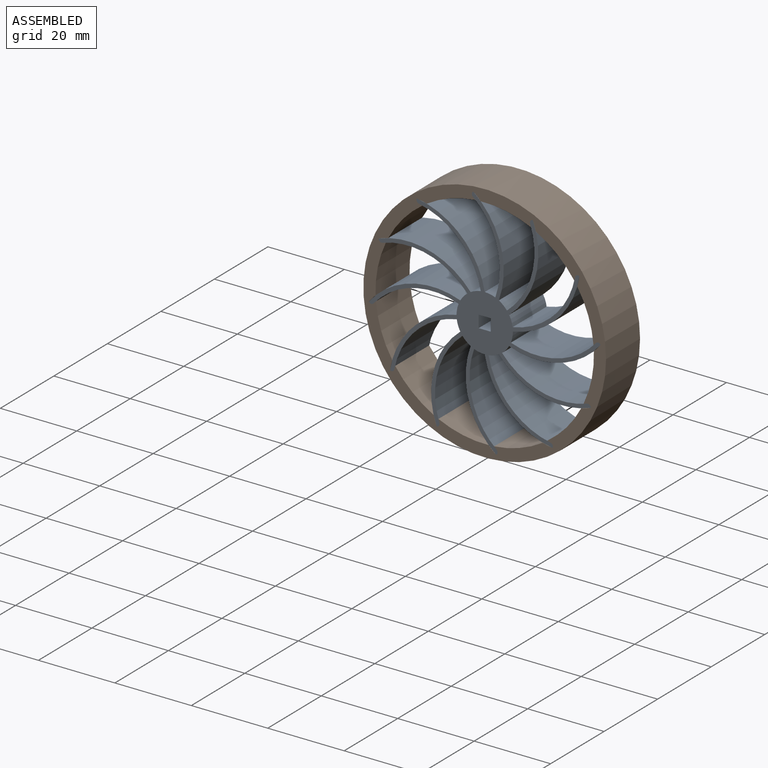
[diagram: assembled view]
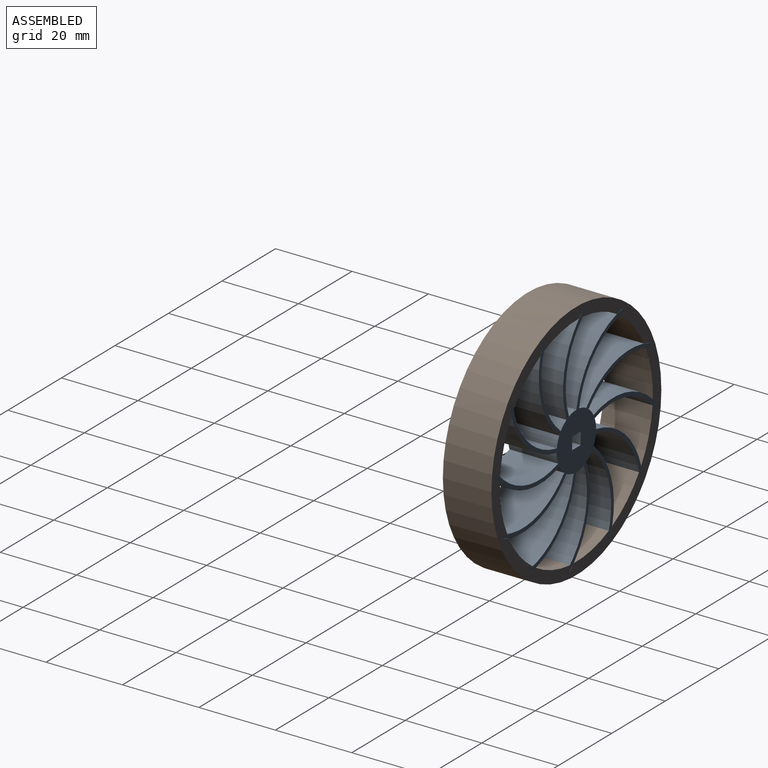
[diagram: assembled view, second angle]
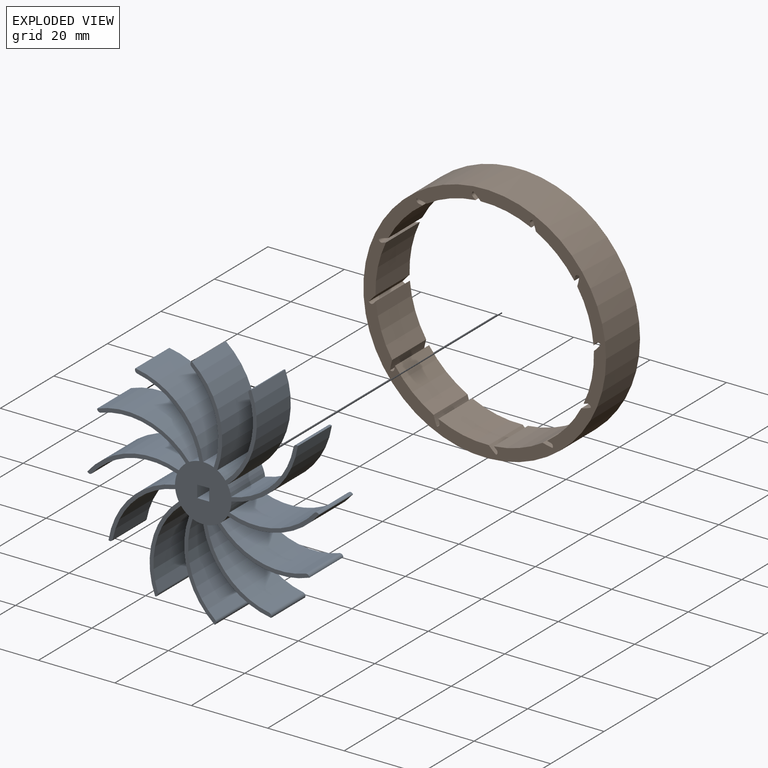
[diagram: exploded view]
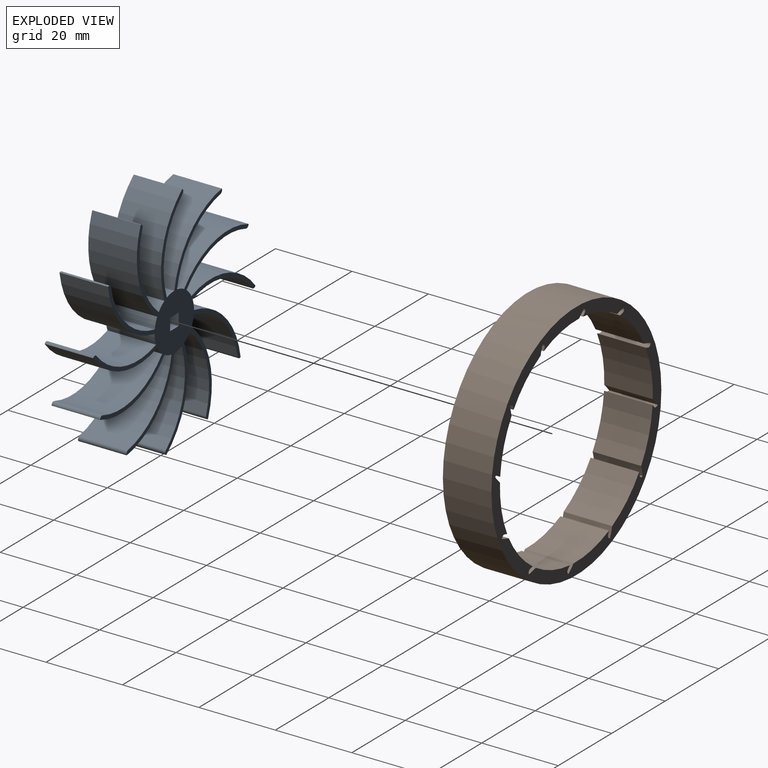
[diagram: exploded view, second angle]
ASSEMBLY  parts=2 mates=2
PART A: 54 faces, bbox 60.7x12.7x60.7 mm
  f0: plane 60.67x60.67mm, normal (0,-1,0), area 475.1mm2, adj f1,f2,f3,f4,f6,f7,f8,f9
  f1: plane 12.7x3.18mm, normal (0,0,1), area 40.3mm2, adj f0,f2,f4,f5
  f2: plane 12.7x3.18mm, normal (1,0,0), area 40.3mm2, adj f0,f1,f3,f5
  f3: plane 12.7x3.18mm, normal (0,0,-1), area 40.3mm2, adj f0,f2,f4,f5
  f4: plane 12.7x3.18mm, normal (-1,0,0), area 40.3mm2, adj f0,f1,f3,f5
  f5: plane 60.67x60.67mm, normal (0,1,0), area 475.1mm2, adj f1,f2,f3,f4,f6,f7,f8,f9
  f6: cylinder r=0.76mm len=12.7mm, axis (0,-1,0), area 18.3mm2, adj f0,f5,f7,f53
  f7: cylinder r=20.32mm len=22.21mm, axis (0,1,0), area 310.8mm2, adj f0,f5,f6,f19
  f8: cylinder r=7.38mm len=12.7mm, axis (0,1,0), area 36.1mm2, adj f0,f5,f20,f23
  f9: cylinder r=7.38mm len=12.7mm, axis (0,1,0), area 36.1mm2, adj f0,f5,f22,f26
  f10: cylinder r=7.38mm len=12.7mm, axis (0,1,0), area 36.1mm2, adj f0,f5,f28,f29
  f11: cylinder r=7.38mm len=12.7mm, axis (0,1,0), area 36.1mm2, adj f0,f5,f31,f32
  f12: cylinder r=7.38mm len=12.7mm, axis (0,1,0), area 36.1mm2, adj f0,f5,f34,f35
  f13: cylinder r=7.38mm len=12.7mm, axis (0,1,0), area 36.1mm2, adj f0,f5,f37,f38
  f14: cylinder r=7.38mm len=12.7mm, axis (0,1,0), area 36.1mm2, adj f0,f5,f40,f41
  f15: cylinder r=7.38mm len=12.7mm, axis (0,1,0), area 36.1mm2, adj f0,f5,f43,f44
  f16: cylinder r=7.38mm len=12.7mm, axis (0,1,0), area 36.1mm2, adj f0,f5,f46,f47
  f17: cylinder r=7.38mm len=12.7mm, axis (0,1,0), area 36.1mm2, adj f0,f5,f49,f50
  f18: cylinder r=7.38mm len=12.7mm, axis (0,1,0), area 36.1mm2, adj f0,f5,f25,f53
  f19: cylinder r=7.38mm len=12.7mm, axis (0,1,0), area 36.1mm2, adj f0,f5,f7,f52
  f20: cylinder r=20.32mm len=22.26mm, axis (0,1,0), area 310.8mm2, adj f0,f5,f8,f21
  f21: cylinder r=0.76mm len=12.7mm, axis (0,-1,0), area 18.3mm2, adj f0,f5,f20,f22
  f22: cylinder r=21.34mm len=23.94mm, axis (0,1,0), area 337mm2, adj f0,f5,f9,f21
  f23: cylinder r=21.34mm len=17.76mm, axis (0,1,0), area 337mm2, adj f0,f5,f8,f24
  f24: cylinder r=0.76mm len=12.7mm, axis (0,-1,0), area 18.3mm2, adj f0,f5,f23,f25
  f25: cylinder r=20.32mm len=16.35mm, axis (0,1,0), area 310.8mm2, adj f0,f5,f18,f24
  f26: cylinder r=20.32mm len=22.21mm, axis (0,1,0), area 310.8mm2, adj f0,f5,f9,f27
  f27: cylinder r=0.76mm len=12.7mm, axis (0,-1,0), area 18.3mm2, adj f0,f5,f26,f28
  f28: cylinder r=21.34mm len=24.07mm, axis (0,1,0), area 337mm2, adj f0,f5,f10,f27
  f29: cylinder r=20.32mm len=16.35mm, axis (0,1,0), area 310.8mm2, adj f0,f5,f10,f30
  f30: cylinder r=0.76mm len=12.7mm, axis (0,-1,0), area 18.3mm2, adj f0,f5,f29,f31
  f31: cylinder r=21.34mm len=17.76mm, axis (0,1,0), area 337mm2, adj f0,f5,f11,f30
  f32: cylinder r=20.32mm len=22.26mm, axis (0,1,0), area 310.8mm2, adj f0,f5,f11,f33
  f33: cylinder r=0.76mm len=12.7mm, axis (0,-1,0), area 18.3mm2, adj f0,f5,f32,f34
  f34: cylinder r=21.34mm len=23.94mm, axis (0,1,0), area 337mm2, adj f0,f5,f12,f33
  f35: cylinder r=20.32mm len=22.21mm, axis (0,1,0), area 310.8mm2, adj f0,f5,f12,f36
  f36: cylinder r=0.76mm len=12.7mm, axis (0,-1,0), area 18.3mm2, adj f0,f5,f35,f37
  f37: cylinder r=21.34mm len=24.07mm, axis (0,1,0), area 337mm2, adj f0,f5,f13,f36
  f38: cylinder r=20.32mm len=16.35mm, axis (0,1,0), area 310.8mm2, adj f0,f5,f13,f39
  f39: cylinder r=0.76mm len=12.7mm, axis (0,-1,0), area 18.3mm2, adj f0,f5,f38,f40
  f40: cylinder r=21.34mm len=17.76mm, axis (0,1,0), area 337mm2, adj f0,f5,f14,f39
  f41: cylinder r=20.32mm len=22.26mm, axis (0,1,0), area 310.8mm2, adj f0,f5,f14,f42
  f42: cylinder r=0.76mm len=12.7mm, axis (0,-1,0), area 18.3mm2, adj f0,f5,f41,f43
  f43: cylinder r=21.34mm len=23.94mm, axis (0,1,0), area 337mm2, adj f0,f5,f15,f42
  f44: cylinder r=20.32mm len=22.21mm, axis (0,1,0), area 310.8mm2, adj f0,f5,f15,f45
  f45: cylinder r=0.76mm len=12.7mm, axis (0,-1,0), area 18.3mm2, adj f0,f5,f44,f46
  f46: cylinder r=21.34mm len=24.07mm, axis (0,1,0), area 337mm2, adj f0,f5,f16,f45
  f47: cylinder r=20.32mm len=16.35mm, axis (0,1,0), area 310.8mm2, adj f0,f5,f16,f48
  f48: cylinder r=0.76mm len=12.7mm, axis (0,-1,0), area 18.3mm2, adj f0,f5,f47,f49
  f49: cylinder r=21.34mm len=17.76mm, axis (0,1,0), area 337mm2, adj f0,f5,f17,f48
  f50: cylinder r=20.32mm len=22.26mm, axis (0,1,0), area 310.8mm2, adj f0,f5,f17,f51
  f51: cylinder r=0.76mm len=12.7mm, axis (0,-1,0), area 18.3mm2, adj f0,f5,f50,f52
  f52: cylinder r=21.34mm len=23.94mm, axis (0,1,0), area 337mm2, adj f0,f5,f19,f51
  f53: cylinder r=21.34mm len=24.07mm, axis (0,1,0), area 337mm2, adj f0,f5,f6,f18
PART B: 51 faces, bbox 63.5x12.7x63.5 mm
  f0: plane 63.5x63.5mm, normal (0,1,0), area 576.7mm2, adj f1,f3,f4,f5,f6,f7,f8,f9
  f1: cylinder r=31.75mm len=63.5mm, axis (0,1,0), area 2533.5mm2, adj f0,f2
  f2: plane 63.5x63.5mm, normal (0,-1,0), area 576.7mm2, adj f1,f3,f4,f5,f6,f7,f8,f9
  f3: cylinder r=21.34mm len=12.7mm, axis (0,1,0), area 33.5mm2, adj f0,f2,f4,f6
  f4: cylinder r=0.76mm len=12.7mm, axis (0,-1,0), area 18.3mm2, adj f0,f2,f3,f5
  f5: cylinder r=20.32mm len=12.7mm, axis (0,1,0), area 11.9mm2, adj f0,f2,f4,f16
  f6: cylinder r=28.57mm len=12.78mm, axis (0,1,0), area 172.7mm2, adj f0,f2,f3,f18
  f7: cylinder r=28.57mm len=13.2mm, axis (0,1,0), area 172.7mm2, adj f0,f2,f20,f21
  f8: cylinder r=28.57mm len=12.7mm, axis (0,1,0), area 172.7mm2, adj f0,f2,f23,f24
  f9: cylinder r=28.57mm len=12.78mm, axis (0,1,0), area 172.7mm2, adj f0,f2,f26,f27
  f10: cylinder r=28.57mm len=13.2mm, axis (0,1,0), area 172.7mm2, adj f0,f2,f29,f30
  f11: cylinder r=28.57mm len=12.7mm, axis (0,1,0), area 172.7mm2, adj f0,f2,f32,f33
  f12: cylinder r=28.57mm len=12.78mm, axis (0,1,0), area 172.7mm2, adj f0,f2,f35,f36
  f13: cylinder r=28.57mm len=13.2mm, axis (0,1,0), area 172.7mm2, adj f0,f2,f38,f39
  f14: cylinder r=28.57mm len=12.7mm, axis (0,1,0), area 172.7mm2, adj f0,f2,f41,f42
  f15: cylinder r=28.57mm len=12.78mm, axis (0,1,0), area 172.7mm2, adj f0,f2,f44,f45
  f16: cylinder r=28.57mm len=12.7mm, axis (0,1,0), area 172.7mm2, adj f0,f2,f5,f48
  f17: cylinder r=28.57mm len=13.2mm, axis (0,1,0), area 172.7mm2, adj f0,f2,f47,f50
  f18: cylinder r=20.32mm len=12.7mm, axis (0,1,0), area 11.9mm2, adj f0,f2,f6,f19
  f19: cylinder r=0.76mm len=12.7mm, axis (0,-1,0), area 18.3mm2, adj f0,f2,f18,f20
  f20: cylinder r=21.34mm len=12.7mm, axis (0,1,0), area 33.5mm2, adj f0,f2,f7,f19
  f21: cylinder r=20.32mm len=12.7mm, axis (0,1,0), area 11.9mm2, adj f0,f2,f7,f22
  f22: cylinder r=0.76mm len=12.7mm, axis (0,-1,0), area 18.3mm2, adj f0,f2,f21,f23
  f23: cylinder r=21.34mm len=12.7mm, axis (0,1,0), area 33.5mm2, adj f0,f2,f8,f22
  f24: cylinder r=20.32mm len=12.7mm, axis (0,1,0), area 11.9mm2, adj f0,f2,f8,f25
  f25: cylinder r=0.76mm len=12.7mm, axis (0,-1,0), area 18.3mm2, adj f0,f2,f24,f26
  f26: cylinder r=21.34mm len=12.7mm, axis (0,1,0), area 33.5mm2, adj f0,f2,f9,f25
  f27: cylinder r=20.32mm len=12.7mm, axis (0,1,0), area 11.9mm2, adj f0,f2,f9,f28
  f28: cylinder r=0.76mm len=12.7mm, axis (0,-1,0), area 18.3mm2, adj f0,f2,f27,f29
  f29: cylinder r=21.34mm len=12.7mm, axis (0,1,0), area 33.5mm2, adj f0,f2,f10,f28
  f30: cylinder r=20.32mm len=12.7mm, axis (0,1,0), area 11.9mm2, adj f0,f2,f10,f31
  f31: cylinder r=0.76mm len=12.7mm, axis (0,-1,0), area 18.3mm2, adj f0,f2,f30,f32
  f32: cylinder r=21.34mm len=12.7mm, axis (0,1,0), area 33.5mm2, adj f0,f2,f11,f31
  f33: cylinder r=20.32mm len=12.7mm, axis (0,1,0), area 11.9mm2, adj f0,f2,f11,f34
  f34: cylinder r=0.76mm len=12.7mm, axis (0,-1,0), area 18.3mm2, adj f0,f2,f33,f35
  f35: cylinder r=21.34mm len=12.7mm, axis (0,1,0), area 33.5mm2, adj f0,f2,f12,f34
  f36: cylinder r=20.32mm len=12.7mm, axis (0,1,0), area 11.9mm2, adj f0,f2,f12,f37
  f37: cylinder r=0.76mm len=12.7mm, axis (0,-1,0), area 18.3mm2, adj f0,f2,f36,f38
  f38: cylinder r=21.34mm len=12.7mm, axis (0,1,0), area 33.5mm2, adj f0,f2,f13,f37
  f39: cylinder r=20.32mm len=12.7mm, axis (0,1,0), area 11.9mm2, adj f0,f2,f13,f40
  f40: cylinder r=0.76mm len=12.7mm, axis (0,-1,0), area 18.3mm2, adj f0,f2,f39,f41
  f41: cylinder r=21.34mm len=12.7mm, axis (0,1,0), area 33.5mm2, adj f0,f2,f14,f40
  f42: cylinder r=20.32mm len=12.7mm, axis (0,1,0), area 11.9mm2, adj f0,f2,f14,f43
  f43: cylinder r=0.76mm len=12.7mm, axis (0,-1,0), area 18.3mm2, adj f0,f2,f42,f44
  f44: cylinder r=21.34mm len=12.7mm, axis (0,1,0), area 33.5mm2, adj f0,f2,f15,f43
  f45: cylinder r=20.32mm len=12.7mm, axis (0,1,0), area 11.9mm2, adj f0,f2,f15,f46
  f46: cylinder r=0.76mm len=12.7mm, axis (0,-1,0), area 18.3mm2, adj f0,f2,f45,f47
  f47: cylinder r=21.34mm len=12.7mm, axis (0,1,0), area 33.5mm2, adj f0,f2,f17,f46
  f48: cylinder r=21.34mm len=12.7mm, axis (0,1,0), area 33.5mm2, adj f0,f2,f16,f49
  f49: cylinder r=0.76mm len=12.7mm, axis (0,-1,0), area 18.3mm2, adj f0,f2,f48,f50
  f50: cylinder r=20.32mm len=12.7mm, axis (0,1,0), area 11.9mm2, adj f0,f2,f17,f49
PLACE A t=(1.01,-3.24,1.85)mm
PLACE B t=(1.01,-3.24,1.85)mm
MATE planar A.f0 <-> B.f1  axis (0,-1,0) through (-2.08,-3.24,30.95)mm
MATE revolute B.f18 <-> A.f20  axis (0,1,0) through (-15.34,3.11,15.55)mm
